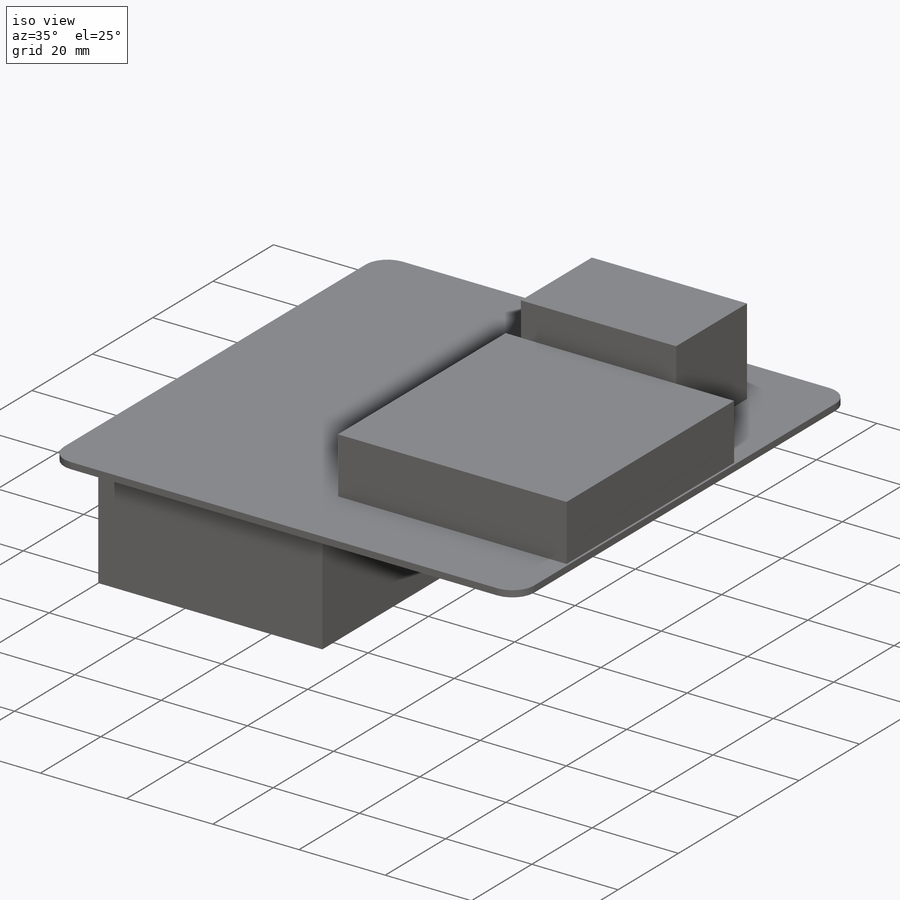
[diagram: iso view]
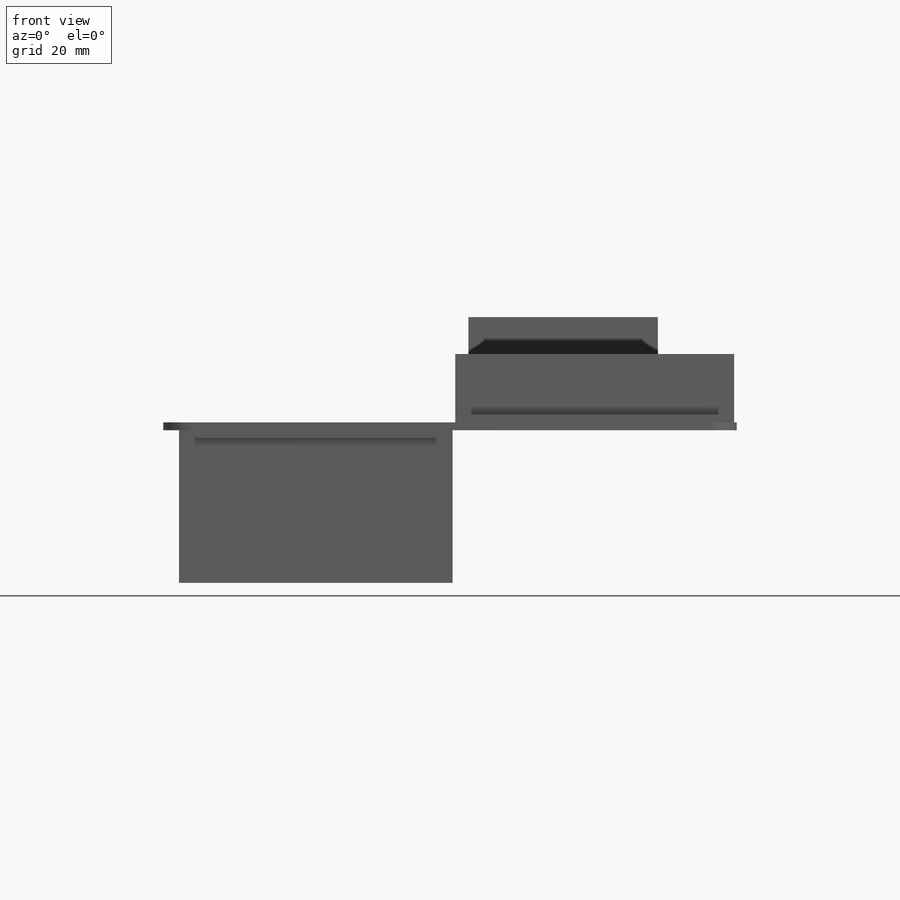
[diagram: front view]
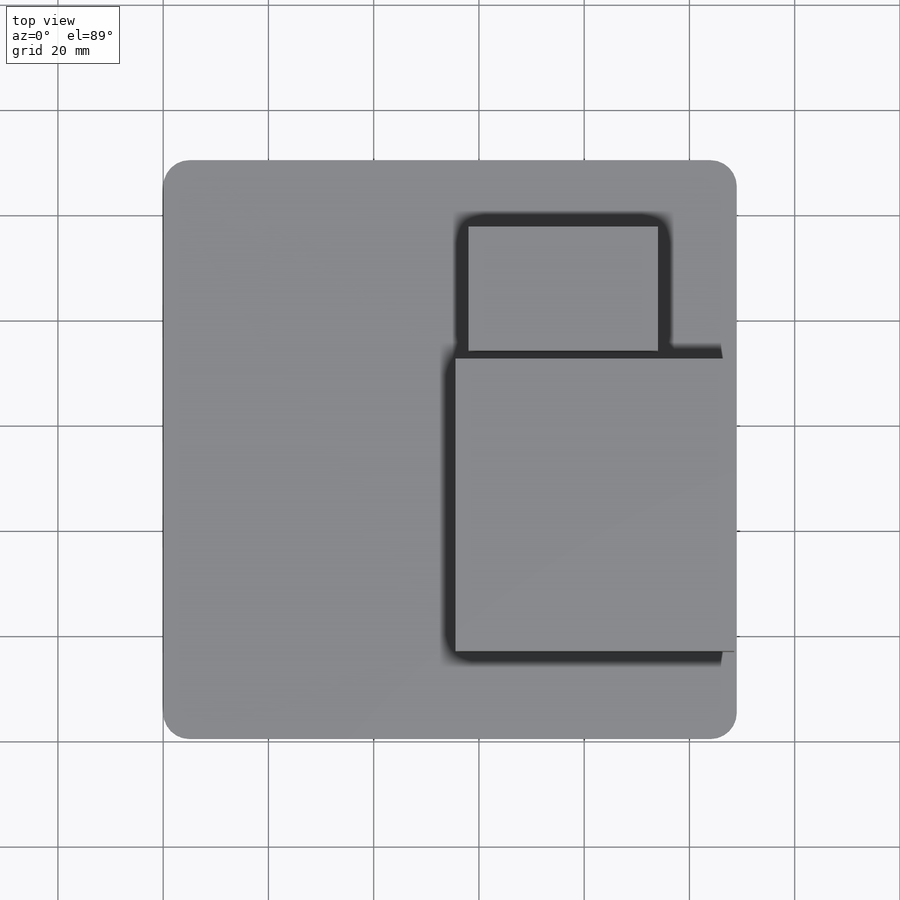
[diagram: top view]
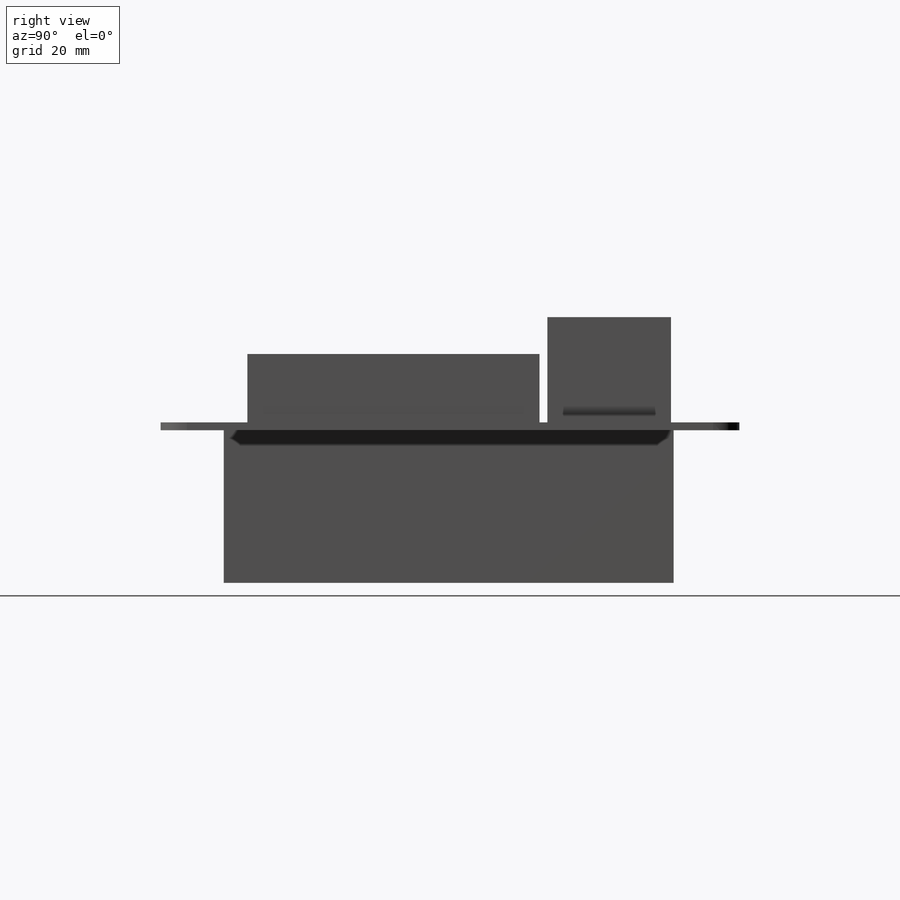
[diagram: right view]
SOLIDWORKS PART (.sldprt)
format: sldprt  version: not decoded by parser v0  size: 257,536 bytes
history: native  units: mm
features: sketch x5, extrude x5, plane x3, material x1, fillet x1 (+9 scaffold rows collapsed)
feature tree (24):
  scaffold x9  (default folders/planes/origin — collapsed)
  material  "Matériau <non spécifié>"
  plane  "Plan de face"
  plane  "Plan de dessus"
  plane  "Plan de droite"
  sketch  "Esquisse1"  dims[D1=110.0mm D2=109.0mm]
  extrude  "Boss.-Extru.1"  Depth=1.5mm
  fillet  "Congé1"  Radius=5mm
  sketch  "Esquisse2"  dims[D1=3.0mm D2=12.0mm D3=54.0mm D4=12.5mm]
  extrude  "Boss.-Extru.2"  Depth=29mm
  sketch  "Esquisse3"  dims[D1=2.0mm D2=18.0mm D3=43.0mm D4=57.0mm D5=5.0mm D6=1.5mm D7=1.5mm D8=1.5mm]
  extrude  "Boss.-Extru.3"  Depth=13mm
  sketch  "Esquisse4"
  extrude  "Boss.-Extru.4"  Depth=13mm
  sketch  "Esquisse5"  dims[D1=13.0mm D2=15.0mm D3=73.5mm D4=58.0mm]
  extrude  "Boss.-Extru.5"  Depth=20mm
decode coverage: 10 of 11 modeling features carry decoded parameters
note: suppression state not decoded; provenance and decode notes live in map.json
